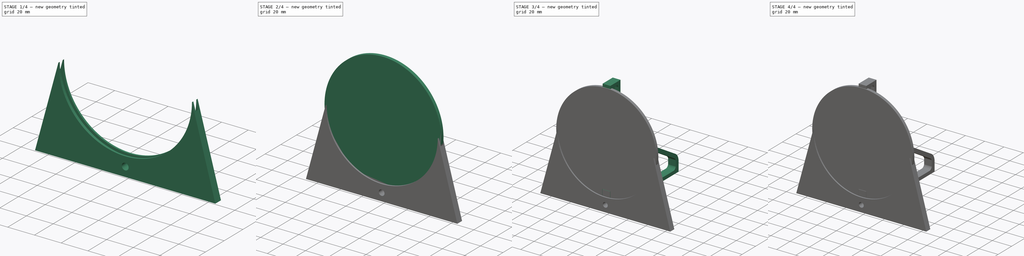
[diagram: build sequence overview — one tinted view per stage of 4, left to right]
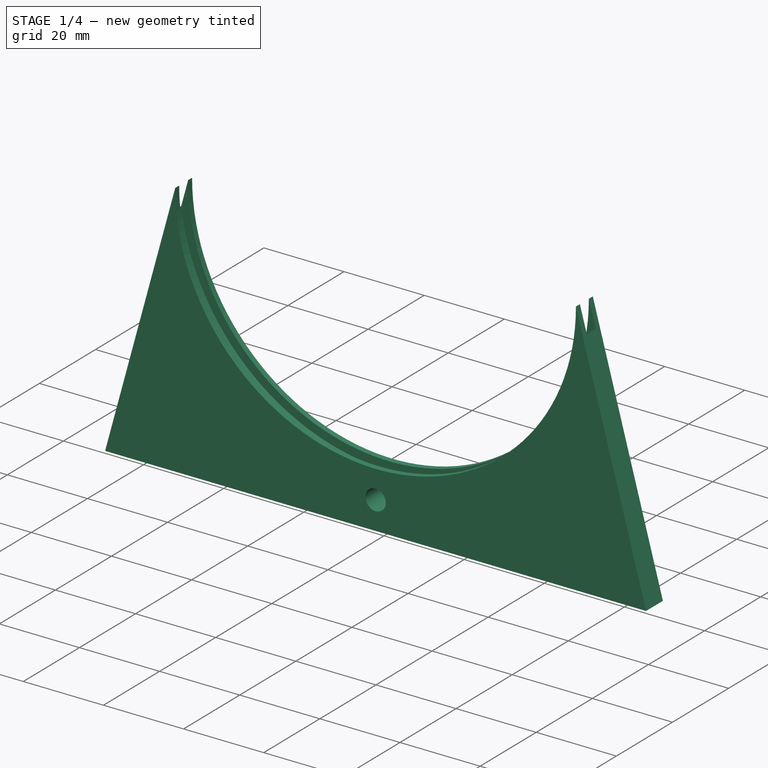
[diagram: stage 1 of 4 — iso view after this stage's code; geometry added in this stage tinted green]
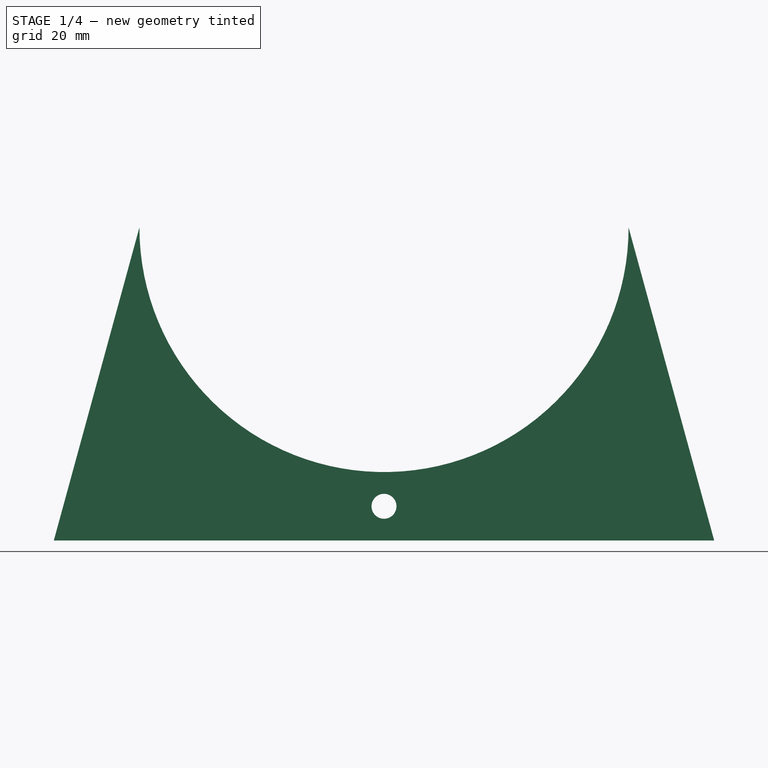
[diagram: stage 1 of 4 — front view after this stage's code; geometry added in this stage tinted green]
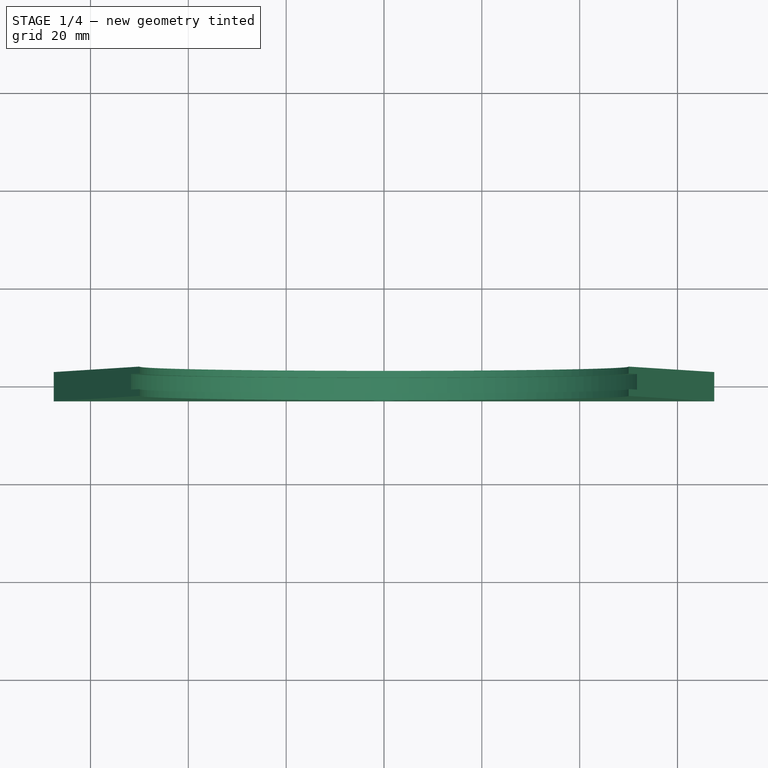
[diagram: stage 1 of 4 — top view after this stage's code; geometry added in this stage tinted green]
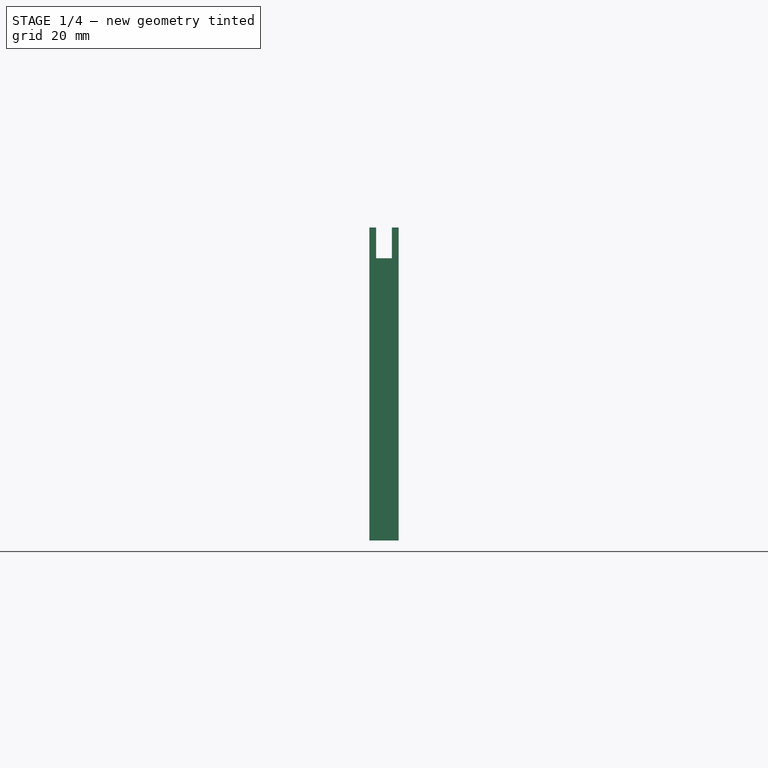
[diagram: stage 1 of 4 — right view after this stage's code; geometry added in this stage tinted green]
FCSTD DOCUMENT  (FreeCAD 0.19R24291 (Git))
Label: Target
License: All rights reserved
LicenseURL: http://en.wikipedia.org/wiki/All_rights_reserved
objects: Sketcher::SketchObject×10, PartDesign::Pad×6, PartDesign::Body×4, PartDesign::Pocket×4, Part::Feature×1
note: 35 computed .brp shape members not serialized (recipe doc carries the construction recipe); baked Part::Feature solids carry a one-line shape summary decoded from their .brp

FEATURE [PartDesign::Body] Body  label="PiezzoElement"
  Group = -> [Sketch,Sketch001,Sketch002,Pad,Pad001,Pad002]
  Origin = -> Origin
  Placement = pos=(-1e-15,1,0) rot=(0,0,1;3.14159rad)
  Tip = -> Pad002
FEATURE [Part::Feature] Part__Feature  label="LED 5mm"
  Placement = pos=(0,4,-57) rot=(1,0,0;1.5708rad)
  shape: bbox 5.5 x 35.8 x 6 mm, 45 faces, 3 solids (baked)
FEATURE [Sketcher::SketchObject] Sketch005
  FullyConstrained = true
  MapMode = 5
  Placement = pos=(0,0,0) rot=(1,0,0;1.5708rad)
  Support = -> [XZ_Plane002]
  sketch-geometry (5):
    g0: LineSegment StartX=-67.5 StartY=-64 StartZ=0 EndX=-50 EndY=-1.42e-14 EndZ=0
    g1: LineSegment StartX=-67.5 StartY=-64 StartZ=0 EndX=67.5 EndY=-64 EndZ=0
    g2: LineSegment StartX=67.5 StartY=-64 StartZ=0 EndX=50 EndY=-1.42e-14 EndZ=0
    g3: ArcOfCircle CenterX=0 CenterY=0 CenterZ=0 NormalX=0 NormalY=0 NormalZ=1 AngleXU=0 Radius=50 StartAngle=3.14159 EndAngle=6.28319
    g4: Circle CenterX=0 CenterY=-57 CenterZ=0 NormalX=0 NormalY=0 NormalZ=1 AngleXU=0 Radius=2.55
  constraints (15):
    c: Coincident(g1,g0)
    c: Horizontal(g1)
    c: Coincident(g2,g1)
    c: Coincident(g3,g-1)
    c: Coincident(g3,g2)
    c: Coincident(g3,g0)
    c: Equal(g0,g2)
    c: Distance(g1) = 135
    c: Horizontal(g0,g2)
    c: DistanceX(g0,g2) = 100
    c: DistanceY(g2,g2) = 64
    c: DistanceY(g0,g3) = 64
    c: PointOnObject(g4,g-2)
    c: Diameter(g4) = 5.1
    c: DistanceY(g4,g3) = 57
FEATURE [PartDesign::Pad] Pad003
  Direction = (0,-1,2e-16)
  Length = 6
  Length2 = 10
  Midplane = true
  Placement = pos=(0,0,0) rot=(1,0,0;1.5708rad)
  Profile = -> Sketch005
  Type = 0
FEATURE [Sketcher::SketchObject] Sketch006
  FullyConstrained = true
  MapMode = 5
  Placement = pos=(0,0,0) rot=(1,0,0;1.5708rad)
  Support = -> [XZ_Plane002]
  sketch-geometry (1):
    g0: Circle CenterX=0 CenterY=0 CenterZ=0 NormalX=0 NormalY=0 NormalZ=1 AngleXU=0 Radius=52.1
  constraints (2):
    c: Coincident(g0,g-1)
    c: Diameter(g0) = 104.2
FEATURE [PartDesign::Pocket] Pocket
  BaseFeature = -> Pad003
  Length = 3.2
  Length2 = 5
  Midplane = true
  Placement = pos=(0,0,0) rot=(1,0,0;1.5708rad)
  Profile = -> Sketch006
  Type = 0
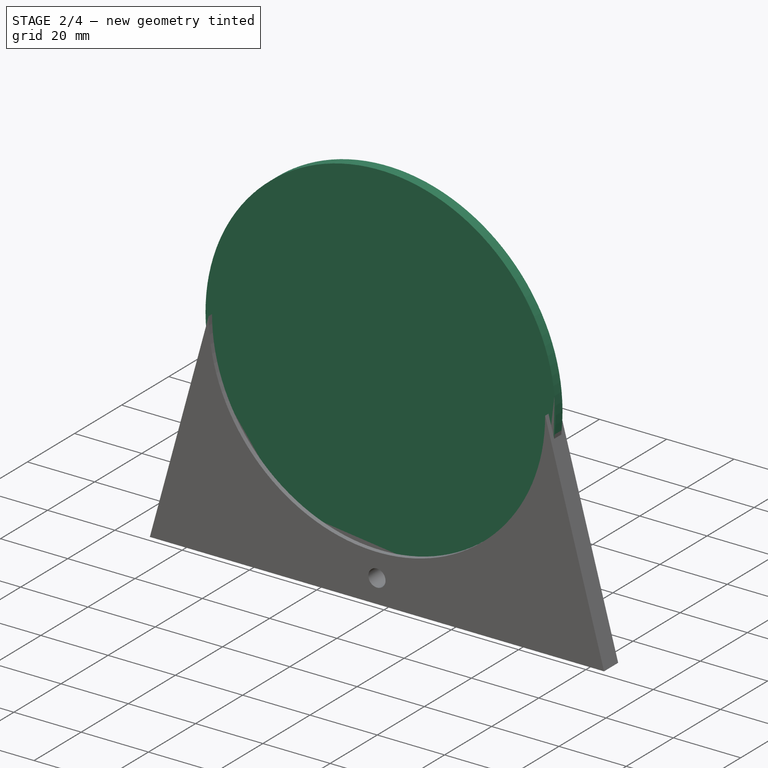
[diagram: stage 2 of 4 — iso view after this stage's code; geometry added in this stage tinted green]
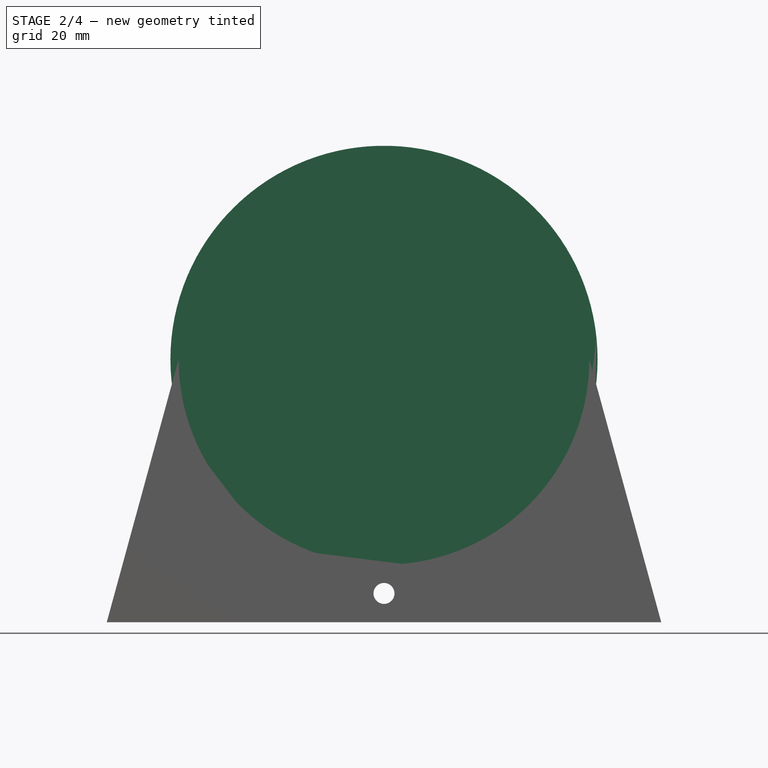
[diagram: stage 2 of 4 — front view after this stage's code; geometry added in this stage tinted green]
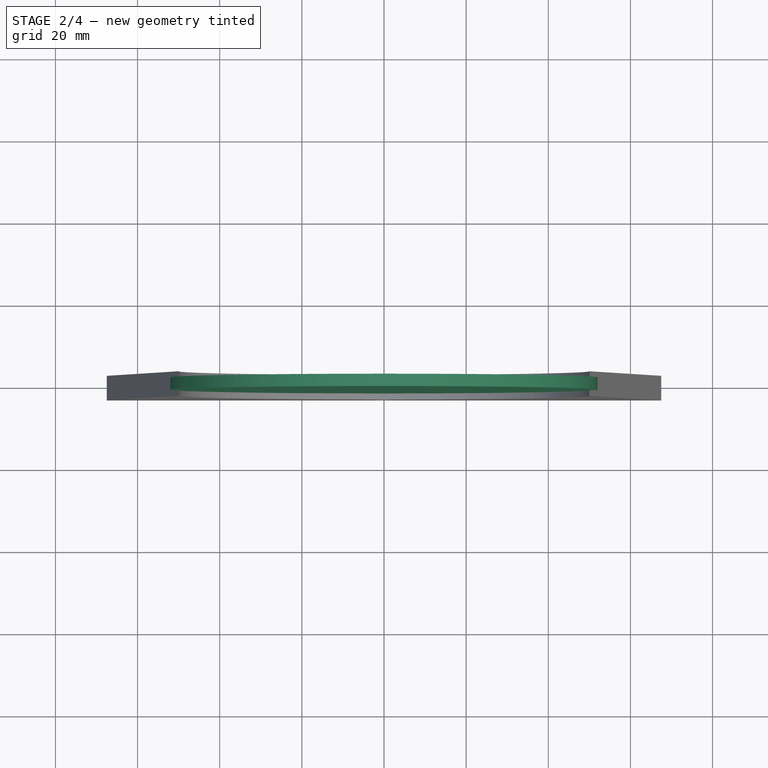
[diagram: stage 2 of 4 — top view after this stage's code; geometry added in this stage tinted green]
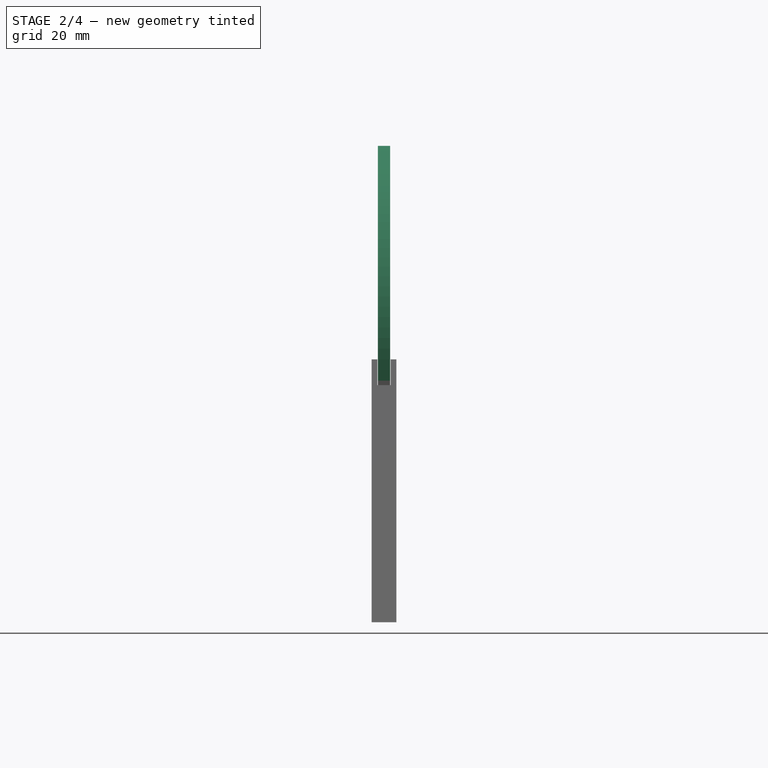
[diagram: stage 2 of 4 — right view after this stage's code; geometry added in this stage tinted green]
FEATURE [Sketcher::SketchObject] Sketch007
  FullyConstrained = true
  MapMode = 5
  Placement = pos=(0,0,0) rot=(1,0,0;1.5708rad)
  Support = -> [XZ_Plane003]
  sketch-geometry (1):
    g0: Circle CenterX=0 CenterY=0 CenterZ=0 NormalX=0 NormalY=0 NormalZ=1 AngleXU=0 Radius=52
  constraints (2):
    c: Coincident(g0,g-1)
    c: Diameter(g0) = 104
FEATURE [PartDesign::Pad] Pad004
  Direction = (0,-1,2e-16)
  Length = 3
  Length2 = 10
  Midplane = true
  Placement = pos=(0,0,0) rot=(1,0,0;1.5708rad)
  Profile = -> Sketch007
  Type = 0
FEATURE [Sketcher::SketchObject] Sketch008
  FullyConstrained = true
  MapMode = 5
  Placement = pos=(0,1.5,3e-16) rot=(-1,0,0;1.5708rad)
  Support = -> [Pad004]
  sketch-geometry (1):
    g0: Circle CenterX=0 CenterY=0 CenterZ=0 NormalX=0 NormalY=0 NormalZ=1 AngleXU=0 Radius=25.5
  constraints (2):
    c: Coincident(g0,g-1)
    c: Diameter(g0) = 51
FEATURE [PartDesign::Pocket] Pocket001
  BaseFeature = -> Pad004
  Length = 0.7
  Length2 = 5
  Placement = pos=(0,0,0) rot=(1,0,0;1.5708rad)
  Profile = -> Sketch008
  Type = 0
FEATURE [PartDesign::Body] Body003  label="Target"
  Group = -> [Sketch007,Pad004,Sketch008,Pocket001,Sketch010,Pocket002]
  Origin = -> Origin003
  Tip = -> Pocket002
FEATURE [Sketcher::SketchObject] Sketch011
  FullyConstrained = true
  MapMode = 5
  Placement = pos=(0,0,0) rot=(1,0,0;1.5708rad)
  Support = -> [XZ_Plane002]
  sketch-geometry (4):
    g0: LineSegment StartX=-4.1 StartY=-44.6 StartZ=0 EndX=4.1 EndY=-44.6 EndZ=0
    g1: LineSegment StartX=4.1 StartY=-44.6 StartZ=0 EndX=4.1 EndY=-53.6 EndZ=0
    g2: LineSegment StartX=4.1 StartY=-53.6 StartZ=0 EndX=-4.1 EndY=-53.6 EndZ=0
    g3: LineSegment StartX=-4.1 StartY=-53.6 StartZ=0 EndX=-4.1 EndY=-44.6 EndZ=0
  constraints (12):
    c: Coincident(g0,g1)
    c: Coincident(g1,g2)
    c: Coincident(g2,g3)
    c: Coincident(g3,g0)
    c: Horizontal(g0)
    c: Horizontal(g2)
    c: Vertical(g1)
    c: Vertical(g3)
    c: DistanceY(g2,g-1) = 53.6
    c: DistanceY(g3,g3) = 9
    c: DistanceX(g2,g2) = 8.2
    c: DistanceX(g-1,g0) = 4.1
FEATURE [PartDesign::Pocket] Pocket003
  BaseFeature = -> Pocket
  Length = 3.1
  Length2 = 5
  Midplane = true
  Placement = pos=(0,0,0) rot=(1,0,0;1.5708rad)
  Profile = -> Sketch011
  Type = 0
FEATURE [PartDesign::Body] Body002  label="Base"
  Group = -> [Sketch005,Pad003,Sketch006,Pocket,Sketch011,Pocket003]
  Origin = -> Origin002
  Tip = -> Pocket003
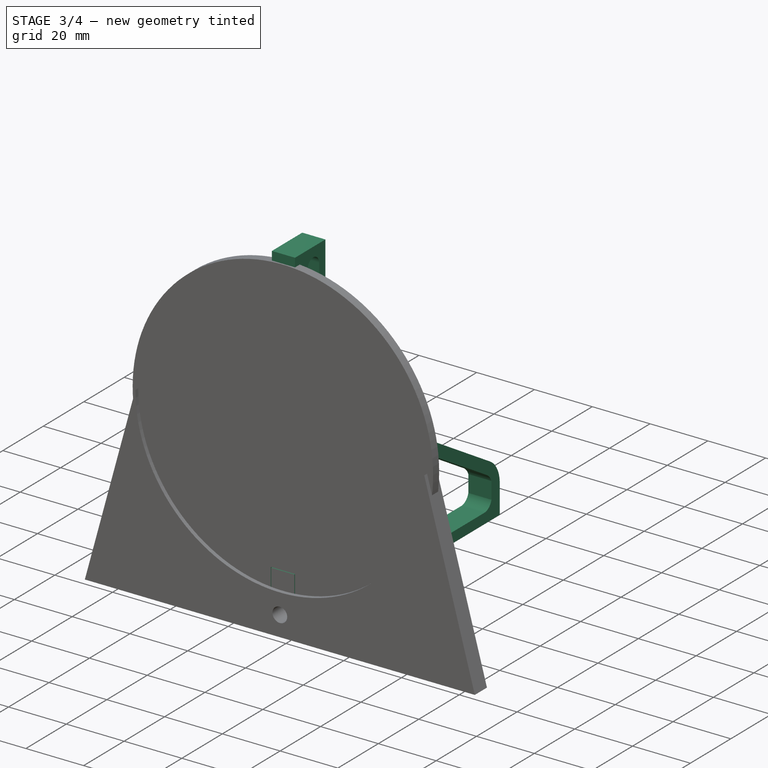
[diagram: stage 3 of 4 — iso view after this stage's code; geometry added in this stage tinted green]
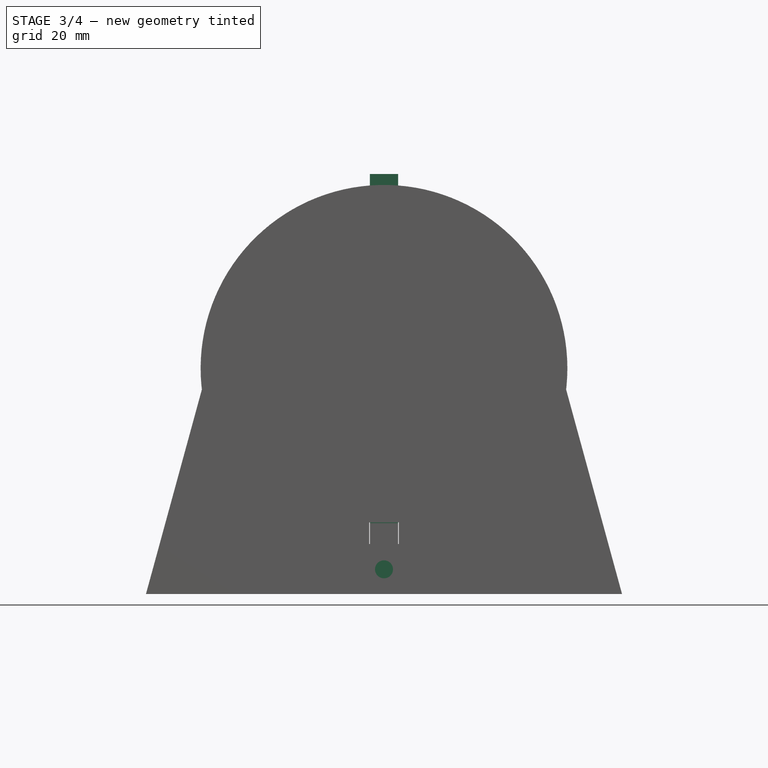
[diagram: stage 3 of 4 — front view after this stage's code; geometry added in this stage tinted green]
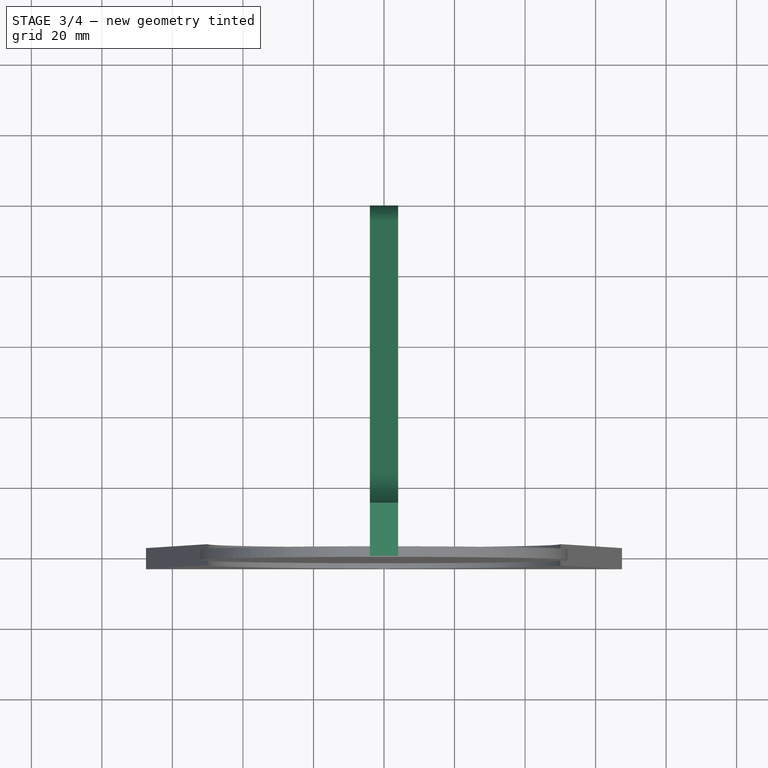
[diagram: stage 3 of 4 — top view after this stage's code; geometry added in this stage tinted green]
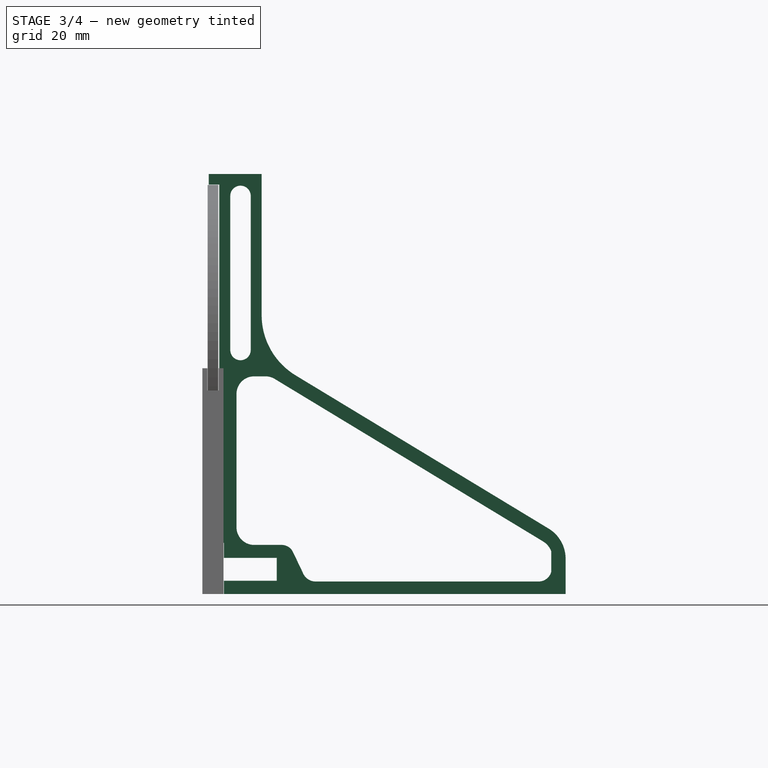
[diagram: stage 3 of 4 — right view after this stage's code; geometry added in this stage tinted green]
FEATURE [Sketcher::SketchObject] Sketch
  FullyConstrained = true
  MapMode = 5
  Placement = pos=(0,0,0) rot=(1,0,0;1.5708rad)
  Support = -> [XZ_Plane]
  sketch-geometry (1):
    g0: Circle CenterX=0 CenterY=0 CenterZ=0 NormalX=0 NormalY=0 NormalZ=1 AngleXU=0 Radius=25
  constraints (2):
    c: Coincident(g0,g-1)
    c: Diameter(g0) = 50
FEATURE [Sketcher::SketchObject] Sketch001
  FullyConstrained = true
  MapMode = 5
  Placement = pos=(0,0,0) rot=(1,0,0;1.5708rad)
  Support = -> [XZ_Plane]
  sketch-geometry (1):
    g0: Circle CenterX=0 CenterY=0 CenterZ=0 NormalX=0 NormalY=0 NormalZ=1 AngleXU=0 Radius=12.5
  constraints (2):
    c: Coincident(g0,g-1)
    c: Diameter(g0) = 25
FEATURE [Sketcher::SketchObject] Sketch002
  FullyConstrained = true
  MapMode = 5
  Placement = pos=(0,0,0) rot=(1,0,0;1.5708rad)
  Support = -> [XZ_Plane]
  sketch-geometry (4):
    g0: ArcOfCircle CenterX=-15.5 CenterY=0 CenterZ=0 NormalX=0 NormalY=0 NormalZ=1 AngleXU=0 Radius=3 StartAngle=1.5708 EndAngle=4.71239
    g1: ArcOfCircle CenterX=-8.5 CenterY=1e-16 CenterZ=0 NormalX=0 NormalY=0 NormalZ=1 AngleXU=0 Radius=3 StartAngle=4.71239 EndAngle=7.85398
    g2: LineSegment StartX=-15.5 StartY=-3 StartZ=0 EndX=-8.5 EndY=-3 EndZ=0
    g3: LineSegment StartX=-15.5 StartY=3 StartZ=0 EndX=-8.5 EndY=3 EndZ=0
  constraints (10):
    c: Tangent(g0,g3) = 1.5708
    c: Tangent(g0,g2) = -1.5708
    c: Tangent(g2,g1) = -1.5708
    c: Tangent(g3,g1) = 1.5708
    c: Horizontal(g2)
    c: Equal(g0,g1)
    c: PointOnObject(g0,g-1)
    c: DistanceX(g2,g2) = 7
    c: DistanceX(g1,g-1) = 8.5
    c: Diameter(g0) = 6
FEATURE [PartDesign::Pad] Pad
  Direction = (1,1,1)
  Length = 0.2
  Length2 = 100
  Placement = pos=(0,0,0) rot=(1,0,0;1.5708rad)
  Profile = -> Sketch
  Type = 0
FEATURE [Sketcher::SketchObject] Sketch009
  FullyConstrained = false
  MapMode = 5
  Placement = pos=(0,0,0) rot=(0.57735,0.57735,0.57735;2.0944rad)
  Support = -> [YZ_Plane004]
  sketch-geometry (38):
    g0: LineSegment StartX=-1.2 StartY=55.1 StartZ=0 EndX=13.8 EndY=55.1 EndZ=0
    g1: LineSegment StartX=-1.2 StartY=55.1 StartZ=0 EndX=-1.2 EndY=52.1 EndZ=0
    g2: LineSegment StartX=-1.2 StartY=52.1 StartZ=0 EndX=1.8 EndY=52.1 EndZ=0
    g3: LineSegment StartX=1.8 StartY=52.1 StartZ=0 EndX=1.8 EndY=-43.9 EndZ=0
    g4: LineSegment StartX=1.5 StartY=-49.5 StartZ=0 EndX=3.1 EndY=-49.5 EndZ=0
    g5: LineSegment StartX=3.1 StartY=-64 StartZ=0 EndX=100 EndY=-64 EndZ=0
    g6: LineSegment StartX=100 StartY=-64 StartZ=0 EndX=100 EndY=-54 EndZ=0
    g7: LineSegment StartX=95.1795 StartY=-45.4459 StartZ=0 EndX=23.441 EndY=-2.00821 EndZ=0
    g8: LineSegment StartX=13.8 StartY=55.1 StartZ=0 EndX=13.8 EndY=15.1 EndZ=0
    g9: ArcOfCircle CenterX=33.8 CenterY=15.1 CenterZ=0 NormalX=0 NormalY=0 NormalZ=1 AngleXU=0 Radius=20 StartAngle=3.14159 EndAngle=4.16794
    g10: ArcOfCircle CenterX=90 CenterY=-54 CenterZ=0 NormalX=0 NormalY=0 NormalZ=1 AngleXU=0 Radius=10 StartAngle=0 EndAngle=1.02634
    g11: LineSegment StartX=3.1 StartY=-49.5 StartZ=0 EndX=3.1 EndY=-53.75 EndZ=0
    g12: LineSegment StartX=3.1 StartY=-53.75 StartZ=0 EndX=18.1 EndY=-53.75 EndZ=0
    g13: LineSegment StartX=18.1 StartY=-53.75 StartZ=0 EndX=18.1 EndY=-60.25 EndZ=0
    g14: LineSegment StartX=18.1 StartY=-60.25 StartZ=0 EndX=3.1 EndY=-60.25 EndZ=0
    g15: LineSegment StartX=3.1 StartY=-60.25 StartZ=0 EndX=3.1 EndY=-64 EndZ=0
    g16: LineSegment StartX=1.5 StartY=-49.5 StartZ=0 EndX=1.5 EndY=-53.4 EndZ=0
    g17: LineSegment StartX=1.8 StartY=-43.9 StartZ=0 EndX=-1.5 EndY=-43.9 EndZ=0
    g18: LineSegment StartX=-1.5 StartY=-43.9 StartZ=0 EndX=-1.5 EndY=-53.4 EndZ=0
    g19: LineSegment StartX=1.5 StartY=-53.4 StartZ=0 EndX=-1.5 EndY=-53.4 EndZ=0
    g20: LineSegment StartX=6.67242 StartY=-7.279 StartZ=0 EndX=6.67242 EndY=-45.075 EndZ=0
    g21: LineSegment StartX=11.6724 StartY=-50.075 StartZ=0 EndX=19.4578 EndY=-50.075 EndZ=0
    g22: LineSegment StartX=22.6973 StartY=-52.1195 StartZ=0 EndX=25.6196 EndY=-58.2494 EndZ=0
    g23: LineSegment StartX=29.1115 StartY=-60.4532 StartZ=0 EndX=92.3472 EndY=-60.4532 EndZ=0
    g24: LineSegment StartX=93.5564 StartY=-49.0579 StartZ=0 EndX=17.4938 EndY=-3.00194 EndZ=0
    g25: LineSegment StartX=14.904 StartY=-2.279 StartZ=0 EndX=11.6724 EndY=-2.279 EndZ=0
    g26: ArcOfCircle CenterX=14.904 CenterY=-7.279 CenterZ=0 NormalX=0 NormalY=0 NormalZ=1 AngleXU=0 Radius=5 StartAngle=1.02634 EndAngle=1.5708
    g27: ArcOfCircle CenterX=90.5569 CenterY=-54.0117 CenterZ=0 NormalX=0 NormalY=0 NormalZ=1 AngleXU=0 Radius=5.79116 StartAngle=0.387723 EndAngle=1.02634
    g28: ArcOfCircle CenterX=29.1115 CenterY=-56.5848 CenterZ=0 NormalX=0 NormalY=0 NormalZ=1 AngleXU=0 Radius=3.86842 StartAngle=3.58644 EndAngle=4.71239
    g29: ArcOfCircle CenterX=19.4578 CenterY=-53.6638 CenterZ=0 NormalX=0 NormalY=0 NormalZ=1 AngleXU=0 Radius=3.58878 StartAngle=0.444846 EndAngle=1.5708
    g30: ArcOfCircle CenterX=92.3472 CenterY=-56.7554 CenterZ=0 NormalX=0 NormalY=0 NormalZ=1 AngleXU=0 Radius=3.69781 StartAngle=4.71239 EndAngle=6.02054
    g31: ArcOfCircle CenterX=11.6724 CenterY=-45.075 CenterZ=0 NormalX=0 NormalY=0 NormalZ=1 AngleXU=0 Radius=5 StartAngle=3.14159 EndAngle=4.71239
    g32: ArcOfCircle CenterX=11.6724 CenterY=-7.279 CenterZ=0 NormalX=0 NormalY=0 NormalZ=1 AngleXU=0 Radius=5 StartAngle=1.5708 EndAngle=3.14159
    g33: LineSegment StartX=95.9182 StartY=-57.7155 StartZ=0 EndX=95.9182 EndY=-51.8222 EndZ=0
    g34: ArcOfCircle CenterX=7.80826 CenterY=48.8907 CenterZ=0 NormalX=0 NormalY=0 NormalZ=1 AngleXU=0 Radius=2.89854 StartAngle=-9e-16 EndAngle=3.14159
    g35: ArcOfCircle CenterX=7.80826 CenterY=5.18466 CenterZ=0 NormalX=0 NormalY=0 NormalZ=1 AngleXU=0 Radius=2.89854 StartAngle=3.14159 EndAngle=6.28319
    g36: LineSegment StartX=4.90973 StartY=48.8907 StartZ=0 EndX=4.90973 EndY=5.18466 EndZ=0
    g37: LineSegment StartX=10.7068 StartY=5.18466 StartZ=0 EndX=10.7068 EndY=48.8907 EndZ=0
  constraints (87):
    c: Horizontal(g0)
    c: Coincident(g1,g0)
    c: Vertical(g1)
    c: Coincident(g2,g1)
    c: Horizontal(g2)
    c: Coincident(g3,g2)
    c: Vertical(g3)
    c: Horizontal(g5)
    c: Coincident(g6,g5)
    c: Vertical(g6)
    c: Vertical(g8)
    c: Distance(g1) = 3
    c: DistanceX(g-1,g5) = 3.1
    c: DistanceY(g5,g-1) = 64
    c: DistanceX(g-1,g5) = 100
    c: Tangent(g7,g9) = 1.5708
    c: Tangent(g8,g9) = -1.5708
    c: DistanceY(g8,g8) = 40
    c: DistanceX(g-1,g3) = 1.8
    c: Horizontal(g4)
    c: Distance(g0) = 15
    c: Tangent(g6,g10) = -1.5708
    c: Tangent(g7,g10) = -1.5708
    c: Coincident(g8,g0)
    c: DistanceX(g2,g2) = 3
    c: DistanceY(g-1,g0) = 55.1
    c: Diameter(g9) = 40
    c: Diameter(g10) = 20
    c: DistanceY(g6,g6) = 10
    c: DistanceY(g5,g4) = 14.5
    c: Coincident(g11,g4)
    c: Vertical(g11)
    c: Coincident(g12,g11)
    c: Horizontal(g12)
    c: Coincident(g13,g12)
    c: Vertical(g13)
    c: Coincident(g14,g13)
    c: Horizontal(g14)
    c: Coincident(g15,g14)
    c: Vertical(g15)
    c: Coincident(g15,g5)
    c: Vertical(g11,g14)
    c: Distance(g13) = 6.5
    c: DistanceY(g11,g11) = 4.25
    c: Distance(g12) = 15
    c: DistanceX(g4,g4) = 1.6
    c: Coincident(g16,g4)
    c: Vertical(g16)
    c: Coincident(g17,g3)
    c: Horizontal(g17)
    c: Coincident(g18,g17)
    c: Vertical(g18)
    c: Distance(g17) = 3.3
    c: Coincident(g19,g16)
    c: Coincident(g19,g18)
    c: Horizontal(g19)
    c: DistanceY(g18,g18) = 9.5
    c: DistanceY(g3,g3) = 96
    c: Vertical(g20)
    c: Horizontal(g21)
    c: Horizontal(g23)
    c: Horizontal(g25)
    c: Tangent(g25,g26) = -1.5708
    c: Tangent(g24,g26) = -1.5708
    c: Tangent(g24,g27) = -1.5708
    c: Tangent(g23,g28) = -1.5708
    c: Tangent(g22,g28) = -1.5708
    c: Tangent(g21,g29) = 1.5708
    c: Tangent(g22,g29) = 1.5708
    c: Tangent(g23,g30) = -1.5708
    c: Tangent(g21,g31) = -1.5708
    c: Tangent(g20,g31) = -1.5708
    c: Tangent(g25,g32) = -1.5708
    c: Tangent(g20,g32) = -1.5708
    c: Parallel(g24,g7)
    c: Diameter(g32) = 10
    c: Diameter(g31) = 10
    c: Diameter(g26) = 10
    c: Coincident(g33,g30)
    c: Coincident(g33,g27)
    c: Vertical(g33)
    c: Tangent(g34,g36) = -1.5708
    c: Tangent(g36,g35) = -1.5708
    c: Tangent(g35,g37) = -1.5708
    c: Tangent(g37,g34) = -1.5708
    c: Equal(g34,g35)
    c: Vertical(g36)
FEATURE [PartDesign::Pad] Pad005
  Direction = (1,-2e-16,3e-16)
  Length = 8
  Length2 = 10
  Midplane = true
  Placement = pos=(0,0,0) rot=(0.57735,0.57735,0.57735;2.0944rad)
  Profile = -> Sketch009
  Type = 0
FEATURE [PartDesign::Body] Body004  label="Stand"
  Group = -> [Sketch009,Pad005]
  Origin = -> Origin004
  Tip = -> Pad005
FEATURE [Sketcher::SketchObject] Sketch010
  FullyConstrained = true
  MapMode = 5
  Placement = pos=(0,-1.5,-3e-16) rot=(1,0,0;1.5708rad)
  Support = -> [Pocket001]
  sketch-geometry (4):
    g0: LineSegment StartX=-4.2 StartY=-43.7 StartZ=0 EndX=4.2 EndY=-43.7 EndZ=0
    g1: LineSegment StartX=4.2 StartY=-43.7 StartZ=0 EndX=4.2 EndY=-52.7 EndZ=0
    g2: LineSegment StartX=4.2 StartY=-52.7 StartZ=0 EndX=-4.2 EndY=-52.7 EndZ=0
    g3: LineSegment StartX=-4.2 StartY=-52.7 StartZ=0 EndX=-4.2 EndY=-43.7 EndZ=0
  constraints (12):
    c: Coincident(g0,g1)
    c: Coincident(g1,g2)
    c: Coincident(g2,g3)
    c: Coincident(g3,g0)
    c: Horizontal(g0)
    c: Horizontal(g2)
    c: Vertical(g1)
    c: Vertical(g3)
    c: DistanceY(g0,g-1) = 43.7
    c: DistanceX(g0,g0) = 8.4
    c: DistanceX(g-1,g0) = 4.2
    c: DistanceY(g1,g1) = 9
FEATURE [PartDesign::Pocket] Pocket002
  BaseFeature = -> Pocket001
  Length = 10
  Length2 = 5
  Placement = pos=(0,0,0) rot=(1,0,0;1.5708rad)
  Profile = -> Sketch010
  Type = 0
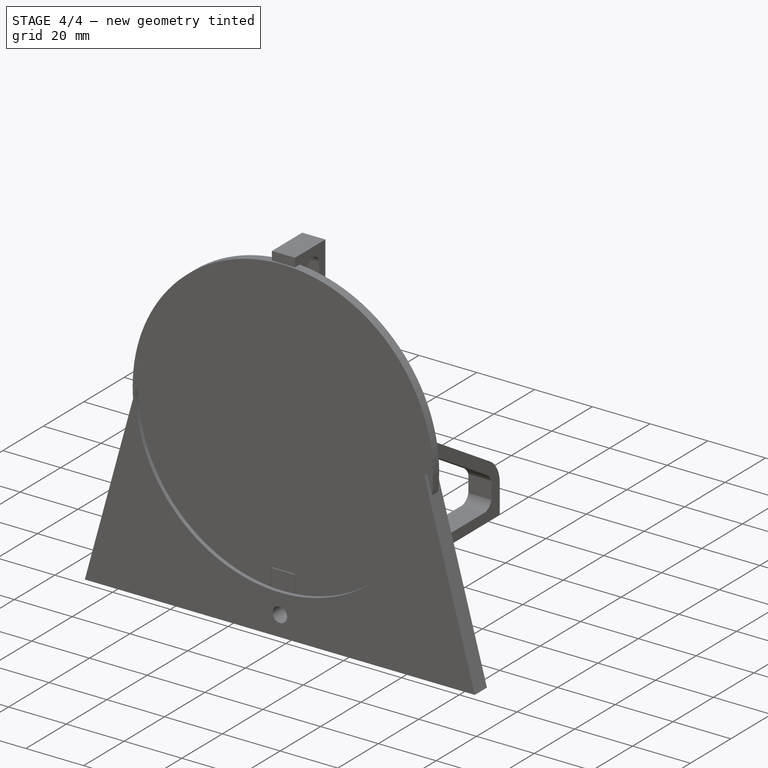
[diagram: stage 4 of 4 — iso view after this stage's code; geometry added in this stage tinted green]
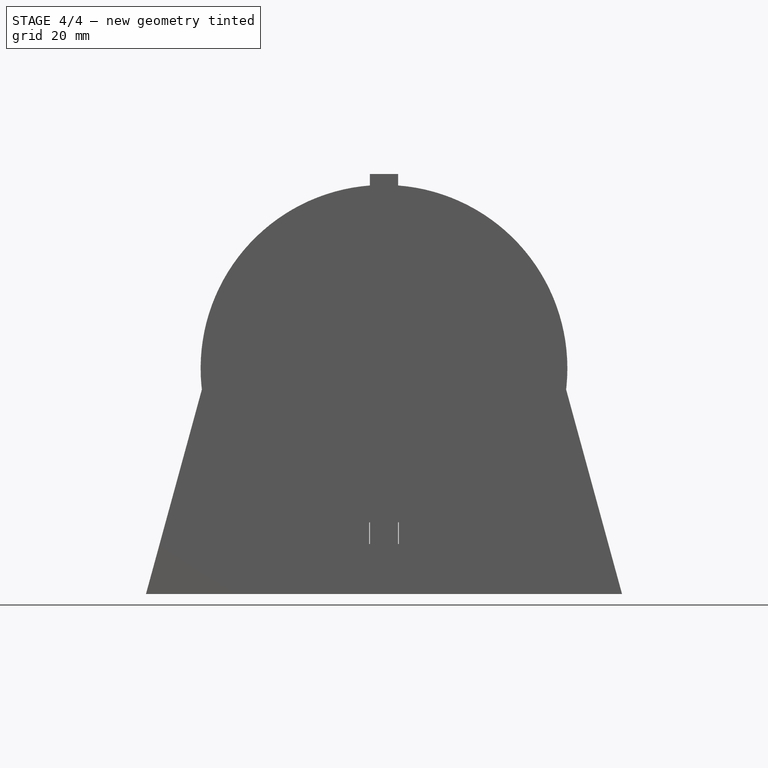
[diagram: stage 4 of 4 — front view after this stage's code; geometry added in this stage tinted green]
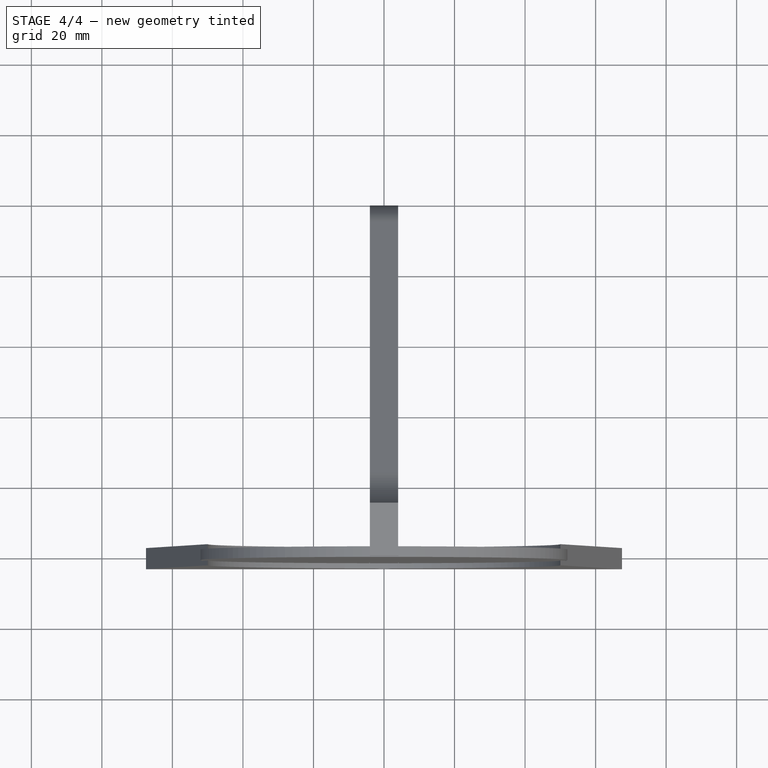
[diagram: stage 4 of 4 — top view after this stage's code; geometry added in this stage tinted green]
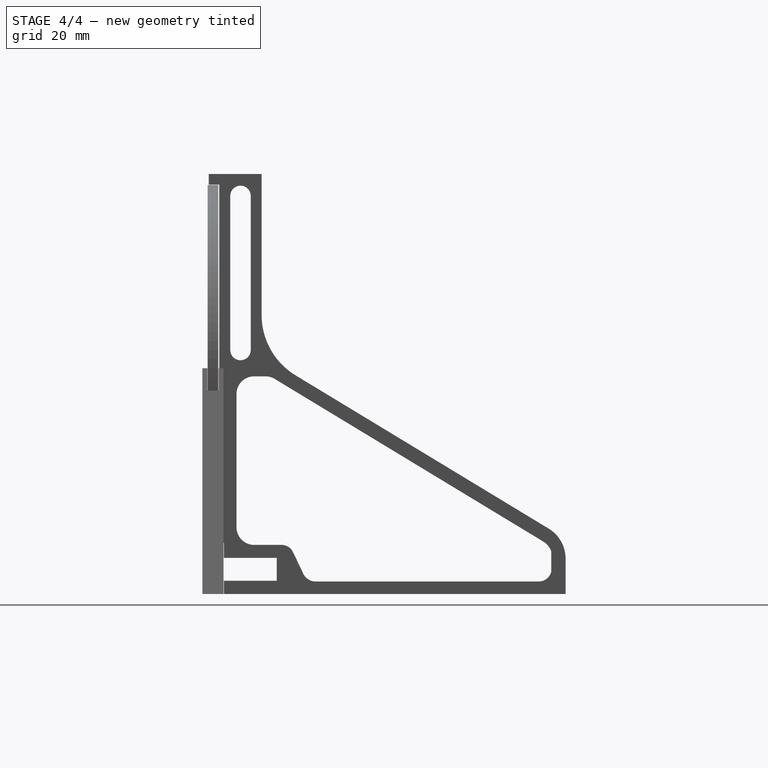
[diagram: stage 4 of 4 — right view after this stage's code; geometry added in this stage tinted green]
FEATURE [PartDesign::Pad] Pad001
  BaseFeature = -> Pad
  Direction = (1,1,1)
  Length = 0.5
  Length2 = 100
  Placement = pos=(0,0,0) rot=(1,0,0;1.5708rad)
  Profile = -> Sketch001
  Type = 0
FEATURE [PartDesign::Pad] Pad002
  BaseFeature = -> Pad001
  Direction = (1,1,1)
  Length = 1
  Length2 = 100
  Placement = pos=(0,0,0) rot=(1,0,0;1.5708rad)
  Profile = -> Sketch002
  Type = 0
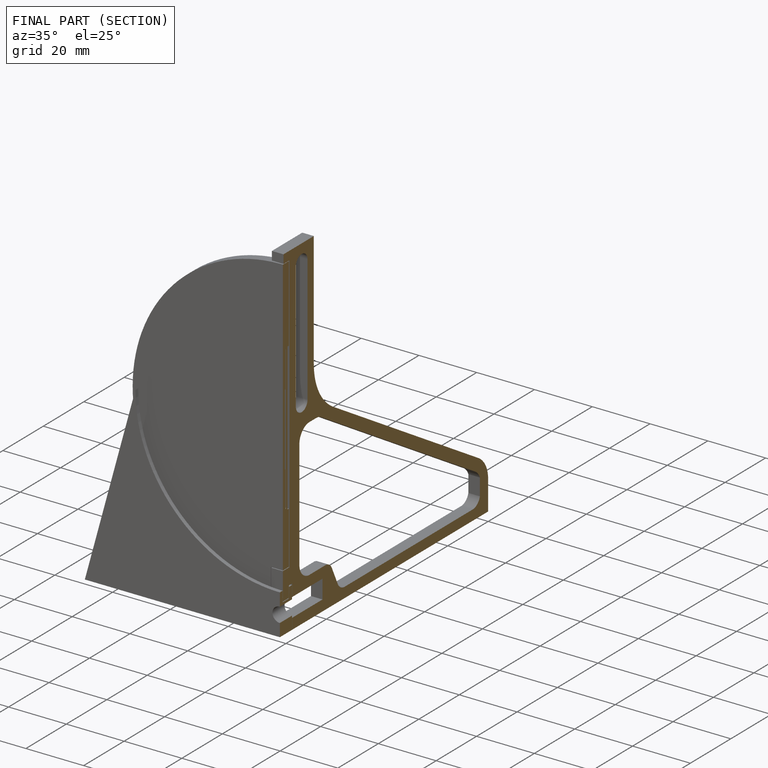
[diagram: finished part — half-section view (interior)]
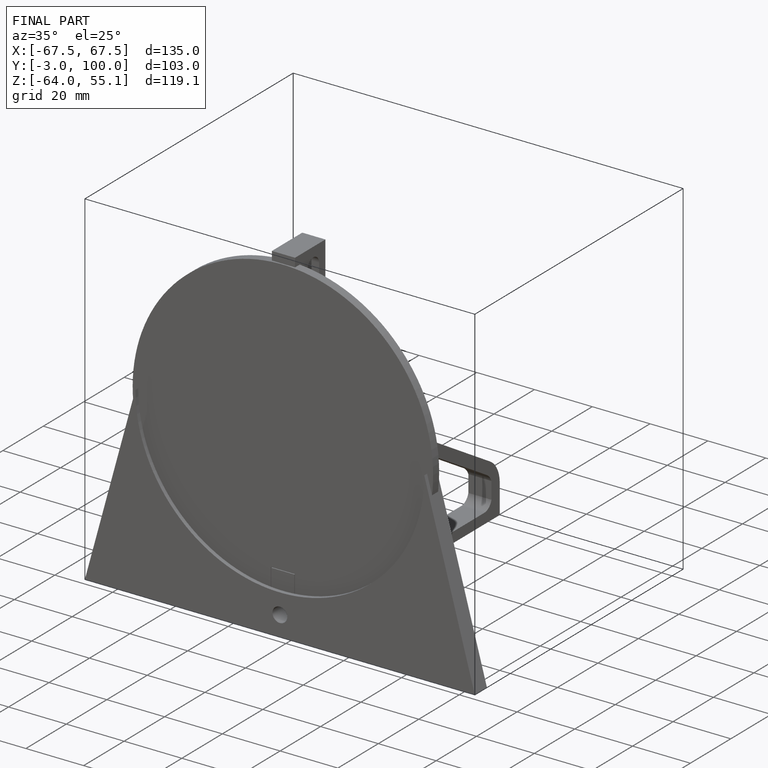
[diagram: finished part — iso view with bounding-box wireframe]
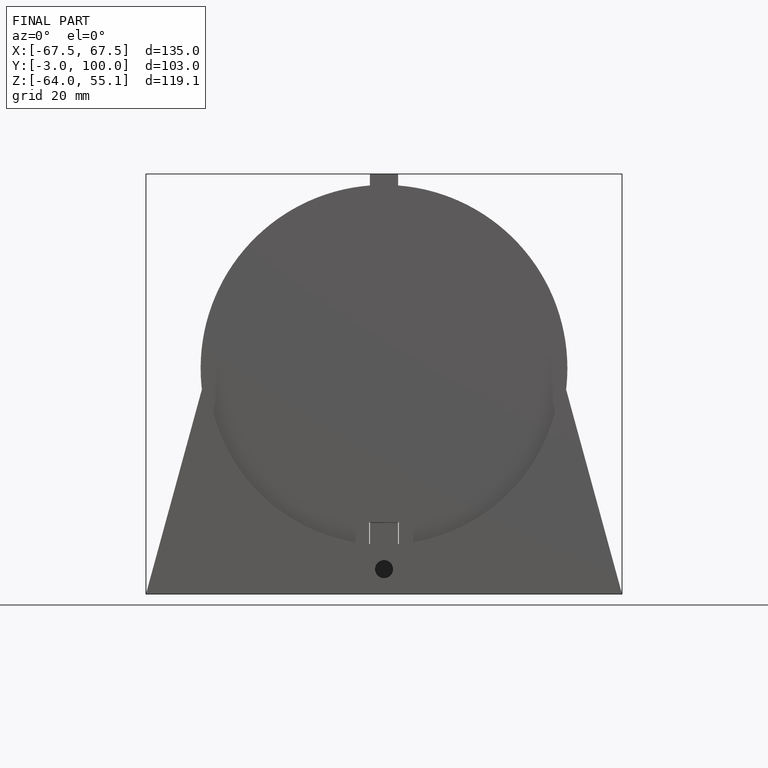
[diagram: finished part — front view with bounding-box wireframe]
